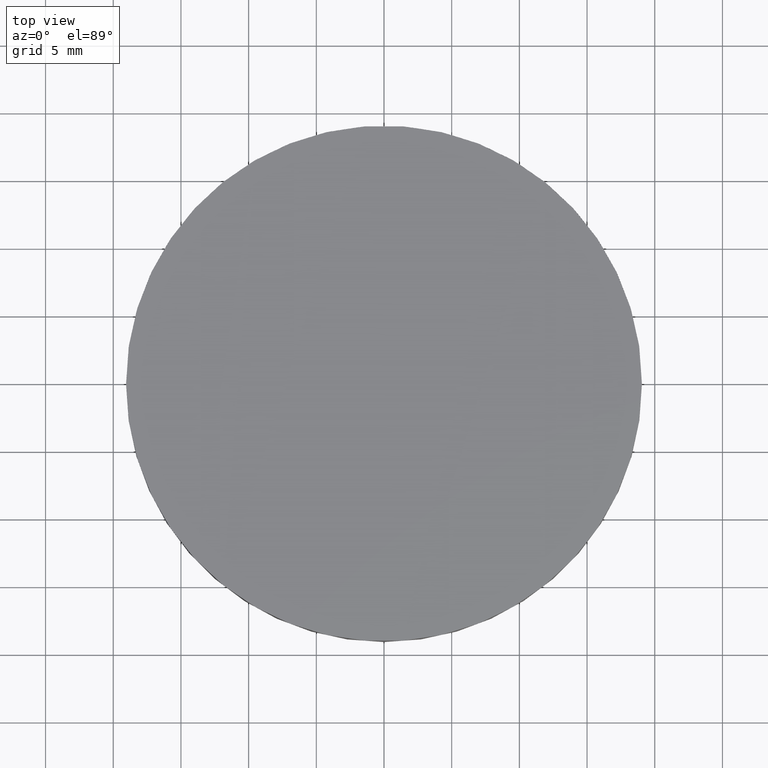
[diagram: clean part render]
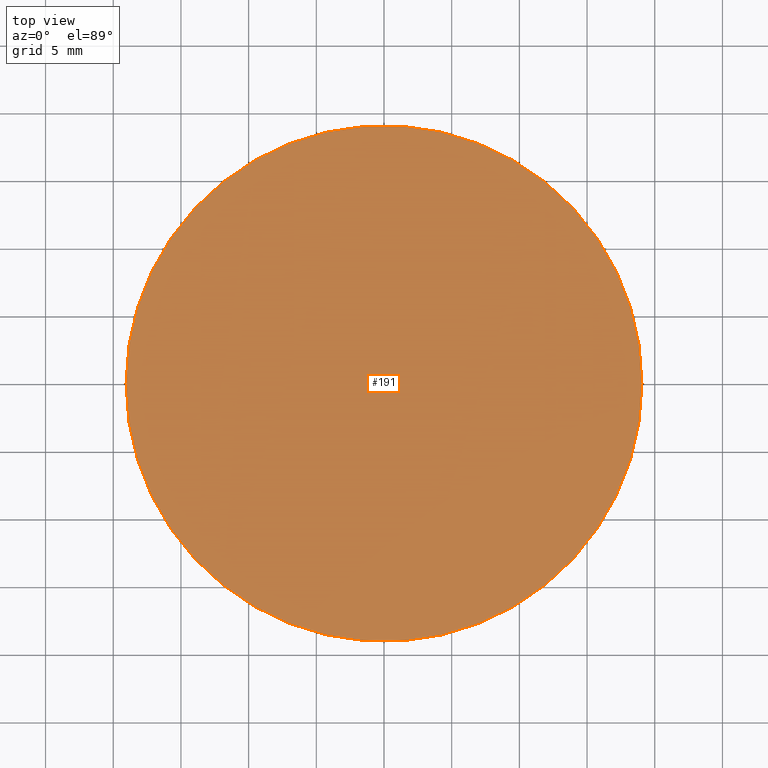
[diagram: same view with one face highlighted and labeled with its STEP entity id]
A machine part, top view. The second image highlights one B-rep face of the part: STEP entity #191.
In plain terms, the highlighted planar face has unit normal (0, 0, 1).
Its self-contained STEP definition (entity closure, byte-faithful):
#7 = ORIENTED_EDGE ( 'NONE', *, *, #100, .F. ) ;
#13 = DIRECTION ( 'NONE',  ( -0.0000000000000000000, -0.0000000000000000000, -1.000000000000000000 ) ) ;
#22 = VERTEX_POINT ( 'NONE', #72 ) ;
#36 = CARTESIAN_POINT ( 'NONE',  ( 19.04999999999999700, -8.881784197001250400E-016, 4.000000000000000000 ) ) ;
#72 = CARTESIAN_POINT ( 'NONE',  ( -19.05000000000000400, 1.444773732675583000E-015, 4.000000000000000000 ) ) ;
#85 = DIRECTION ( 'NONE',  ( 1.000000000000000000, 0.0000000000000000000, 0.0000000000000000000 ) ) ;
#100 = EDGE_CURVE ( 'NONE', #22, #175, #221, .T. ) ;
#112 = DIRECTION ( 'NONE',  ( 1.000000000000000000, 0.0000000000000000000, -0.0000000000000000000 ) ) ;
#122 = AXIS2_PLACEMENT_3D ( 'NONE', #233, #129, #164 ) ;
#129 = DIRECTION ( 'NONE',  ( -0.0000000000000000000, -0.0000000000000000000, -1.000000000000000000 ) ) ;
#130 = DIRECTION ( 'NONE',  ( 0.0000000000000000000, 0.0000000000000000000, 1.000000000000000000 ) ) ;
#132 = AXIS2_PLACEMENT_3D ( 'NONE', #213, #130, #112 ) ;
#150 = PLANE ( 'NONE',  #132 ) ;
#154 = CIRCLE ( 'NONE', #122, 19.05000000000000100 ) ;
#156 = EDGE_LOOP ( 'NONE', ( #209, #7 ) ) ;
#164 = DIRECTION ( 'NONE',  ( 1.000000000000000000, 0.0000000000000000000, 0.0000000000000000000 ) ) ;
#175 = VERTEX_POINT ( 'NONE', #36 ) ;
#191 = ADVANCED_FACE ( 'NONE', ( #195 ), #150, .T. ) ;
#195 = FACE_OUTER_BOUND ( 'NONE', #156, .T. ) ;
#207 = AXIS2_PLACEMENT_3D ( 'NONE', #225, #13, #85 ) ;
#209 = ORIENTED_EDGE ( 'NONE', *, *, #210, .F. ) ;
#210 = EDGE_CURVE ( 'NONE', #175, #22, #154, .T. ) ;
#213 = CARTESIAN_POINT ( 'NONE',  ( 0.0000000000000000000, 39.06600000000000300, 4.000000000000000000 ) ) ;
#221 = CIRCLE ( 'NONE', #207, 19.05000000000000100 ) ;
#225 = CARTESIAN_POINT ( 'NONE',  ( -4.662936703425659800E-015, -8.881784197001250400E-016, 4.000000000000000000 ) ) ;
#233 = CARTESIAN_POINT ( 'NONE',  ( -4.662936703425659800E-015, -8.881784197001250400E-016, 4.000000000000000000 ) ) ;